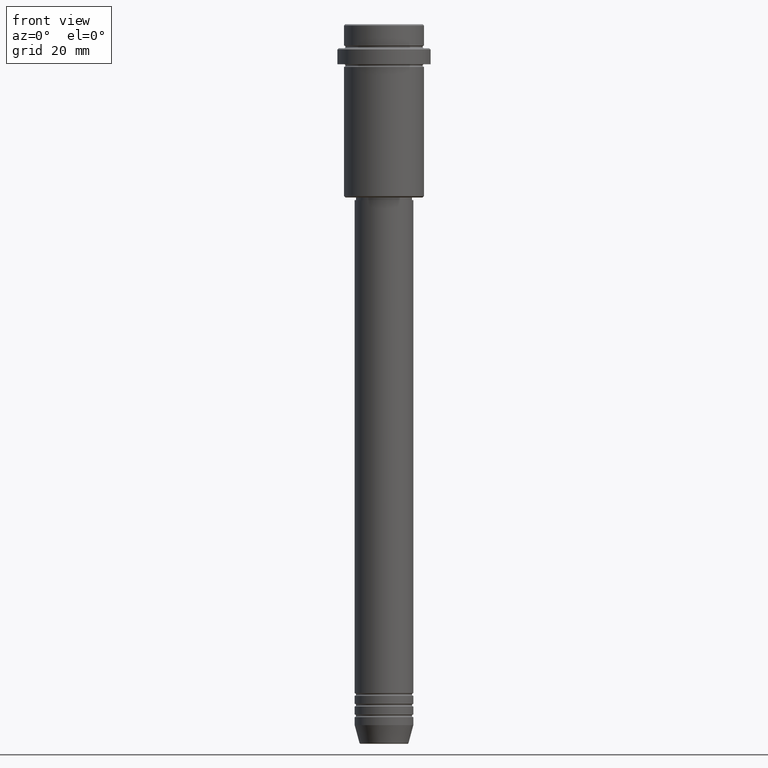
[diagram: clean part render]
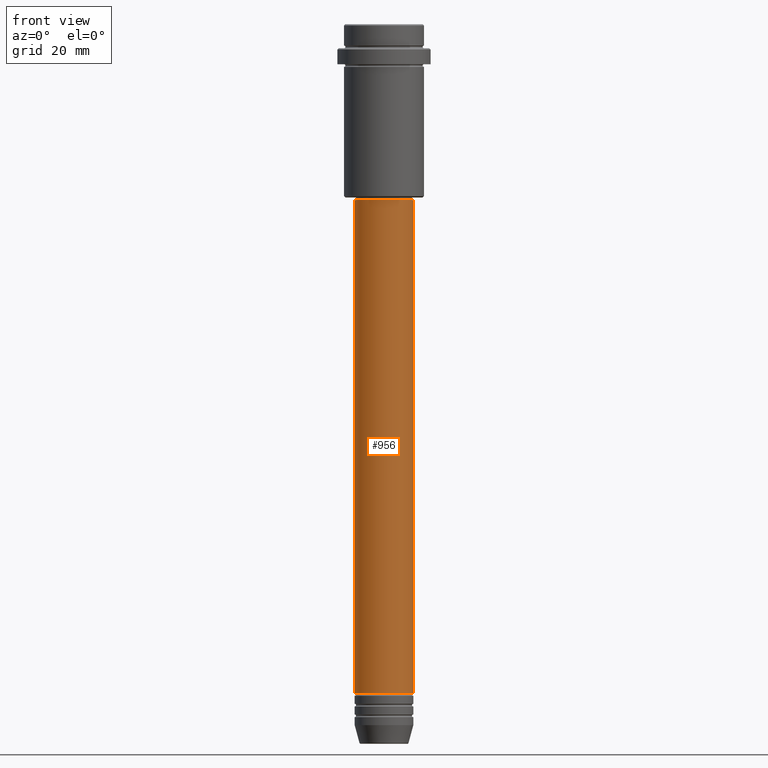
[diagram: same view with one face highlighted and labeled with its STEP entity id]
A machine part, front view. The second image highlights one B-rep face of the part: STEP entity #956.
In plain terms, the highlighted cylindrical surface (edge-blend (fillet) strip) has radius 11 mm, axis along (-0, -0, 1).
Its self-contained STEP definition (entity closure, byte-faithful):
#11 = ORIENTED_EDGE ( 'NONE', *, *, #1388, .T. ) ;
#12 = CARTESIAN_POINT ( 'NONE',  ( -11.00000000000000000, 1.347111479062088405E-15, 0.000000000000000000 ) ) ;
#49 = CARTESIAN_POINT ( 'NONE',  ( 11.00000000000000000, 0.000000000000000000, -250.9999999999998863 ) ) ;
#63 = CARTESIAN_POINT ( 'NONE',  ( 0.000000000000000000, 0.000000000000000000, 0.000000000000000000 ) ) ;
#72 = CARTESIAN_POINT ( 'NONE',  ( 10.99999999999999822, 0.000000000000000000, -66.00000000000000000 ) ) ;
#144 = CARTESIAN_POINT ( 'NONE',  ( -10.99999999999999822, 1.347111479062088207E-15, -66.00000000000000000 ) ) ;
#173 = CYLINDRICAL_SURFACE ( 'NONE', #1304, 11.00000000000000000 ) ;
#180 = DIRECTION ( 'NONE',  ( -0.000000000000000000, -0.000000000000000000, 1.000000000000000000 ) ) ;
#182 = AXIS2_PLACEMENT_3D ( 'NONE', #843, #395, #1156 ) ;
#186 = CARTESIAN_POINT ( 'NONE',  ( 11.00000000000000000, 0.000000000000000000, 0.000000000000000000 ) ) ;
#261 = CARTESIAN_POINT ( 'NONE',  ( -11.00000000000000000, 1.347111479062088405E-15, -250.9999999999998863 ) ) ;
#314 = ORIENTED_EDGE ( 'NONE', *, *, #952, .F. ) ;
#379 = DIRECTION ( 'NONE',  ( 1.000000000000000000, 0.000000000000000000, 0.000000000000000000 ) ) ;
#382 = VERTEX_POINT ( 'NONE', #144 ) ;
#395 = DIRECTION ( 'NONE',  ( -0.000000000000000000, -0.000000000000000000, 1.000000000000000000 ) ) ;
#413 = VERTEX_POINT ( 'NONE', #261 ) ;
#441 = VERTEX_POINT ( 'NONE', #72 ) ;
#492 = DIRECTION ( 'NONE',  ( -0.000000000000000000, -0.000000000000000000, 1.000000000000000000 ) ) ;
#501 = AXIS2_PLACEMENT_3D ( 'NONE', #1171, #1389, #379 ) ;
#645 = ORIENTED_EDGE ( 'NONE', *, *, #957, .T. ) ;
#712 = FACE_OUTER_BOUND ( 'NONE', #1080, .T. ) ;
#744 = LINE ( 'NONE', #12, #945 ) ;
#759 = VERTEX_POINT ( 'NONE', #49 ) ;
#783 = VECTOR ( 'NONE', #492, 1000.000000000000000 ) ;
#807 = CIRCLE ( 'NONE', #182, 11.00000000000000000 ) ;
#834 = DIRECTION ( 'NONE',  ( 1.000000000000000000, 0.000000000000000000, 0.000000000000000000 ) ) ;
#843 = CARTESIAN_POINT ( 'NONE',  ( 0.000000000000000000, 0.000000000000000000, -250.9999999999998863 ) ) ;
#891 = DIRECTION ( 'NONE',  ( -0.000000000000000000, -0.000000000000000000, 1.000000000000000000 ) ) ;
#945 = VECTOR ( 'NONE', #891, 1000.000000000000000 ) ;
#952 = EDGE_CURVE ( 'NONE', #382, #441, #1128, .T. ) ;
#956 = ADVANCED_FACE ( 'NONE', ( #712 ), #173, .T. ) ;
#957 = EDGE_CURVE ( 'NONE', #413, #759, #807, .T. ) ;
#1046 = EDGE_CURVE ( 'NONE', #413, #382, #744, .T. ) ;
#1080 = EDGE_LOOP ( 'NONE', ( #1373, #645, #11, #314 ) ) ;
#1128 = CIRCLE ( 'NONE', #501, 10.99999999999999822 ) ;
#1156 = DIRECTION ( 'NONE',  ( 1.000000000000000000, 0.000000000000000000, 0.000000000000000000 ) ) ;
#1171 = CARTESIAN_POINT ( 'NONE',  ( 0.000000000000000000, 0.000000000000000000, -66.00000000000000000 ) ) ;
#1262 = LINE ( 'NONE', #186, #783 ) ;
#1304 = AXIS2_PLACEMENT_3D ( 'NONE', #63, #180, #834 ) ;
#1373 = ORIENTED_EDGE ( 'NONE', *, *, #1046, .F. ) ;
#1388 = EDGE_CURVE ( 'NONE', #759, #441, #1262, .T. ) ;
#1389 = DIRECTION ( 'NONE',  ( -0.000000000000000000, -0.000000000000000000, 1.000000000000000000 ) ) ;